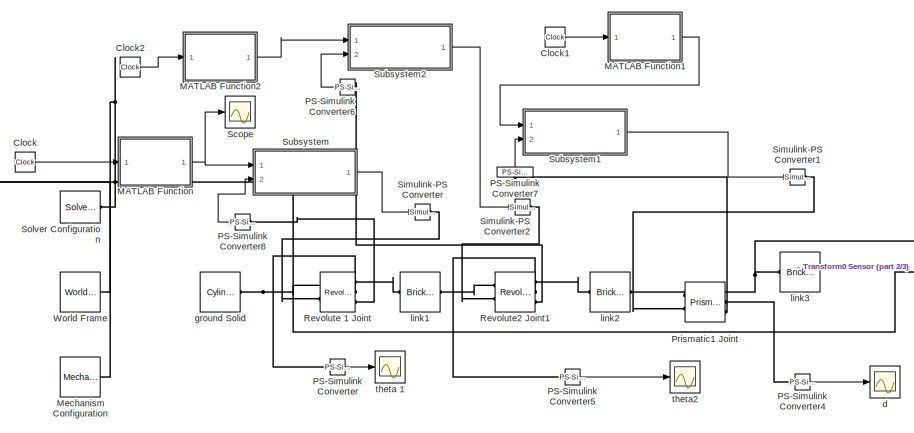
[diagram: root canvas - part 1/3, top left region]
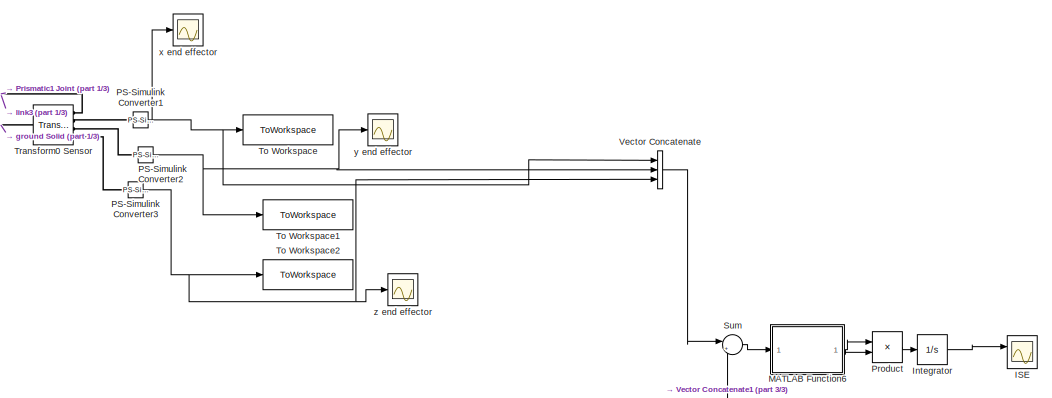
[diagram: root canvas - part 2/3, middle right region]
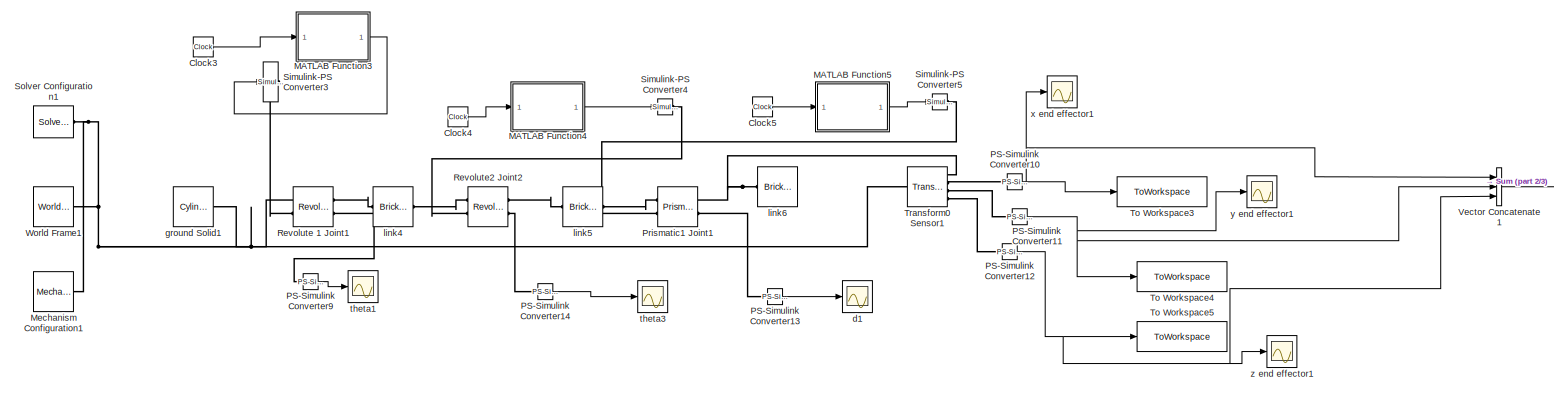
[diagram: root canvas - part 3/3, full width, bottom band]
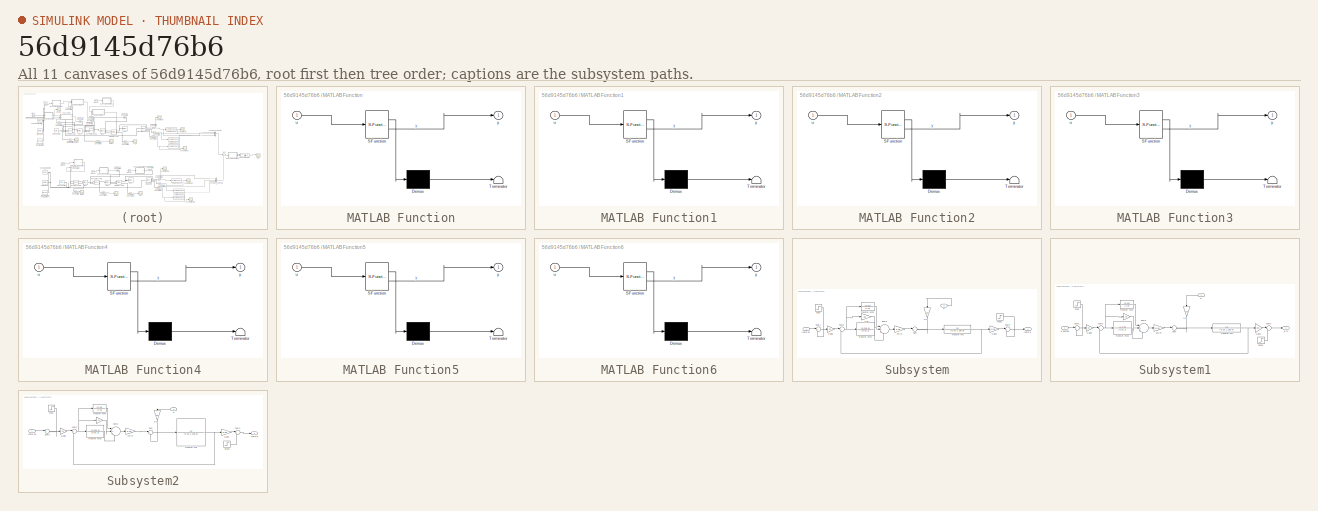
[diagram: thumbnail index - all 11 canvases of the model, root first then tree order]
MODEL slx_56d9145d76b6
KIND model
CONFIG AbsTol = auto
CONFIG EnableMultiTasking = off
CONFIG FixedStep = auto
CONFIG MaxStep = auto
CONFIG MinStep = auto
CONFIG RelTol = 1e-3
CONFIG SampleTimeConstraint = Unconstrained
CONFIG SolverName = VariableStepAuto
CONFIG StartTime = 0.0
CONFIG StopTime = 1
BLOCK [Clock] Clock
BLOCK [Clock] Clock1
BLOCK [Clock] Clock2
BLOCK [Clock] Clock3
BLOCK [Clock] Clock4
BLOCK [Clock] Clock5
BLOCK [Scope] ISE
  Floating = off
  NumInputPorts = 2
  Ports = [2]
  ScopeSpecificationString = Simulink.scopes.TimeScopeBlockCfg('CurrentConfiguration', extmgr.ConfigurationSet(extmgr.Configuration('Core','General UI',true),extmgr.Configuration('Core','Source UI',true),extmgr.Configuration('Sources','WiredSimulink',true,'DataLoggingVariableName','ScopeData7'),extmgr.Configuration('Visuals','Time Domain',true,'SerializedDisplays',{struct('MinYLimReal','-0.0087','MaxYLimReal','0.07832','YLabe...<+1379ch>
BLOCK [Integrator] Integrator
  Ports = [1, 1]
BLOCK [SubSystem] MATLAB Function
  ErrorFcn = Stateflow.Translate.translate
  PermitHierarchicalResolution = ExplicitOnly
  Ports = [1, 1]
  RequestExecContextInheritance = off
  SFBlockType = MATLAB Function
  TreatAsAtomicUnit = on
BLOCK [Demux] MATLAB Function/ Demux 
  Outputs = 1
  Ports = [1, 1]
BLOCK [S-Function] MATLAB Function/ SFunction 
  EnableBusSupport = on
  FunctionName = sf_sfun
  PortCounts = [1 2]
  Ports = [1, 2]
  SFcnIsStateOwnerBlock = off
  SFunctionDeploymentMode = off
  Tag = Stateflow S-Function 2
BLOCK [Terminator] MATLAB Function/ Terminator 
BLOCK [Inport] MATLAB Function/u
BLOCK [Outport] MATLAB Function/y
BLOCK [SubSystem] MATLAB Function1
  ErrorFcn = Stateflow.Translate.translate
  PermitHierarchicalResolution = ExplicitOnly
  Ports = [1, 1]
  RequestExecContextInheritance = off
  SFBlockType = MATLAB Function
  TreatAsAtomicUnit = on
BLOCK [Demux] MATLAB Function1/ Demux 
  Outputs = 1
  Ports = [1, 1]
BLOCK [S-Function] MATLAB Function1/ SFunction 
  EnableBusSupport = on
  FunctionName = sf_sfun
  PortCounts = [1 2]
  Ports = [1, 2]
  SFcnIsStateOwnerBlock = off
  SFunctionDeploymentMode = off
  Tag = Stateflow S-Function 1
BLOCK [Terminator] MATLAB Function1/ Terminator 
BLOCK [Inport] MATLAB Function1/u
BLOCK [Outport] MATLAB Function1/y
BLOCK [SubSystem] MATLAB Function2
  ErrorFcn = Stateflow.Translate.translate
  PermitHierarchicalResolution = ExplicitOnly
  Ports = [1, 1]
  RequestExecContextInheritance = off
  SFBlockType = MATLAB Function
  TreatAsAtomicUnit = on
BLOCK [Demux] MATLAB Function2/ Demux 
  Outputs = 1
  Ports = [1, 1]
BLOCK [S-Function] MATLAB Function2/ SFunction 
  EnableBusSupport = on
  FunctionName = sf_sfun
  PortCounts = [1 2]
  Ports = [1, 2]
  SFcnIsStateOwnerBlock = off
  SFunctionDeploymentMode = off
  Tag = Stateflow S-Function 3
BLOCK [Terminator] MATLAB Function2/ Terminator 
BLOCK [Inport] MATLAB Function2/u
BLOCK [Outport] MATLAB Function2/y
BLOCK [SubSystem] MATLAB Function3
  ErrorFcn = Stateflow.Translate.translate
  PermitHierarchicalResolution = ExplicitOnly
  Ports = [1, 1]
  RequestExecContextInheritance = off
  SFBlockType = MATLAB Function
  TreatAsAtomicUnit = on
BLOCK [Demux] MATLAB Function3/ Demux 
  Outputs = 1
  Ports = [1, 1]
BLOCK [S-Function] MATLAB Function3/ SFunction 
  EnableBusSupport = on
  FunctionName = sf_sfun
  PortCounts = [1 2]
  Ports = [1, 2]
  SFcnIsStateOwnerBlock = off
  SFunctionDeploymentMode = off
  Tag = Stateflow S-Function 4
BLOCK [Terminator] MATLAB Function3/ Terminator 
BLOCK [Inport] MATLAB Function3/u
BLOCK [Outport] MATLAB Function3/y
BLOCK [SubSystem] MATLAB Function4
  ErrorFcn = Stateflow.Translate.translate
  PermitHierarchicalResolution = ExplicitOnly
  Ports = [1, 1]
  RequestExecContextInheritance = off
  SFBlockType = MATLAB Function
  TreatAsAtomicUnit = on
BLOCK [Demux] MATLAB Function4/ Demux 
  Outputs = 1
  Ports = [1, 1]
BLOCK [S-Function] MATLAB Function4/ SFunction 
  EnableBusSupport = on
  FunctionName = sf_sfun
  PortCounts = [1 2]
  Ports = [1, 2]
  SFcnIsStateOwnerBlock = off
  SFunctionDeploymentMode = off
  Tag = Stateflow S-Function 5
BLOCK [Terminator] MATLAB Function4/ Terminator 
BLOCK [Inport] MATLAB Function4/u
BLOCK [Outport] MATLAB Function4/y
BLOCK [SubSystem] MATLAB Function5
  ErrorFcn = Stateflow.Translate.translate
  PermitHierarchicalResolution = ExplicitOnly
  Ports = [1, 1]
  RequestExecContextInheritance = off
  SFBlockType = MATLAB Function
  TreatAsAtomicUnit = on
BLOCK [Demux] MATLAB Function5/ Demux 
  Outputs = 1
  Ports = [1, 1]
BLOCK [S-Function] MATLAB Function5/ SFunction 
  EnableBusSupport = on
  FunctionName = sf_sfun
  PortCounts = [1 2]
  Ports = [1, 2]
  SFcnIsStateOwnerBlock = off
  SFunctionDeploymentMode = off
  Tag = Stateflow S-Function 6
BLOCK [Terminator] MATLAB Function5/ Terminator 
BLOCK [Inport] MATLAB Function5/u
BLOCK [Outport] MATLAB Function5/y
BLOCK [SubSystem] MATLAB Function6
  ErrorFcn = Stateflow.Translate.translate
  PermitHierarchicalResolution = ExplicitOnly
  Ports = [1, 1]
  RequestExecContextInheritance = off
  SFBlockType = MATLAB Function
  TreatAsAtomicUnit = on
BLOCK [Demux] MATLAB Function6/ Demux 
  Outputs = 1
  Ports = [1, 1]
BLOCK [S-Function] MATLAB Function6/ SFunction 
  EnableBusSupport = on
  FunctionName = sf_sfun
  PortCounts = [1 2]
  Ports = [1, 2]
  SFcnIsStateOwnerBlock = off
  SFunctionDeploymentMode = off
  Tag = Stateflow S-Function 7
BLOCK [Terminator] MATLAB Function6/ Terminator 
BLOCK [Inport] MATLAB Function6/u
BLOCK [Outport] MATLAB Function6/y
BLOCK [Reference] Mechanism Configuration  REF=sm_lib/Utilities/Mechanism
Configuration
  Ports = [0, 0, 0, 0, 0, 0, 1]
  SourceBlock = sm_lib/Utilities/Mechanism\nConfiguration
  SourceProductBaseCode = MS
  SourceType = Mechanism\nConfiguration
BLOCK [Reference] Mechanism Configuration1  REF=sm_lib/Utilities/Mechanism
Configuration
  Ports = [0, 0, 0, 0, 0, 0, 1]
  SourceBlock = sm_lib/Utilities/Mechanism\nConfiguration
  SourceProductBaseCode = MS
  SourceType = Mechanism\nConfiguration
BLOCK [Reference] PS-Simulink Converter  REF=nesl_utility/PS-Simulink
Converter
  Ports = [0, 1, 0, 0, 0, 1]
  SourceBlock = nesl_utility/PS-Simulink\nConverter
  SourceProductBaseCode = PW,SS
  SourceType = PS-Simulink\nConverter
BLOCK [Reference] PS-Simulink Converter1  REF=nesl_utility/PS-Simulink
Converter
  NameLocation = top
  Ports = [0, 1, 0, 0, 0, 1]
  SourceBlock = nesl_utility/PS-Simulink\nConverter
  SourceProductBaseCode = PW,SS
  SourceType = PS-Simulink\nConverter
BLOCK [Reference] PS-Simulink Converter10  REF=nesl_utility/PS-Simulink
Converter
  NameLocation = top
  Ports = [0, 1, 0, 0, 0, 1]
  SourceBlock = nesl_utility/PS-Simulink\nConverter
  SourceProductBaseCode = PW,SS
  SourceType = PS-Simulink\nConverter
BLOCK [Reference] PS-Simulink Converter11  REF=nesl_utility/PS-Simulink
Converter
  Ports = [0, 1, 0, 0, 0, 1]
  SourceBlock = nesl_utility/PS-Simulink\nConverter
  SourceProductBaseCode = PW,SS
  SourceType = PS-Simulink\nConverter
BLOCK [Reference] PS-Simulink Converter12  REF=nesl_utility/PS-Simulink
Converter
  Ports = [0, 1, 0, 0, 0, 1]
  SourceBlock = nesl_utility/PS-Simulink\nConverter
  SourceProductBaseCode = PW,SS
  SourceType = PS-Simulink\nConverter
BLOCK [Reference] PS-Simulink Converter13  REF=nesl_utility/PS-Simulink
Converter
  Ports = [0, 1, 0, 0, 0, 1]
  SourceBlock = nesl_utility/PS-Simulink\nConverter
  SourceProductBaseCode = PW,SS
  SourceType = PS-Simulink\nConverter
BLOCK [Reference] PS-Simulink Converter14  REF=nesl_utility/PS-Simulink
Converter
  Ports = [0, 1, 0, 0, 0, 1]
  SourceBlock = nesl_utility/PS-Simulink\nConverter
  SourceProductBaseCode = PW,SS
  SourceType = PS-Simulink\nConverter
BLOCK [Reference] PS-Simulink Converter2  REF=nesl_utility/PS-Simulink
Converter
  Ports = [0, 1, 0, 0, 0, 1]
  SourceBlock = nesl_utility/PS-Simulink\nConverter
  SourceProductBaseCode = PW,SS
  SourceType = PS-Simulink\nConverter
BLOCK [Reference] PS-Simulink Converter3  REF=nesl_utility/PS-Simulink
Converter
  Ports = [0, 1, 0, 0, 0, 1]
  SourceBlock = nesl_utility/PS-Simulink\nConverter
  SourceProductBaseCode = PW,SS
  SourceType = PS-Simulink\nConverter
BLOCK [Reference] PS-Simulink Converter4  REF=nesl_utility/PS-Simulink
Converter
  Ports = [0, 1, 0, 0, 0, 1]
  SourceBlock = nesl_utility/PS-Simulink\nConverter
  SourceProductBaseCode = PW,SS
  SourceType = PS-Simulink\nConverter
BLOCK [Reference] PS-Simulink Converter5  REF=nesl_utility/PS-Simulink
Converter
  Ports = [0, 1, 0, 0, 0, 1]
  SourceBlock = nesl_utility/PS-Simulink\nConverter
  SourceProductBaseCode = PW,SS
  SourceType = PS-Simulink\nConverter
BLOCK [Reference] PS-Simulink Converter6  REF=nesl_utility/PS-Simulink
Converter
  NameLocation = top
  Ports = [0, 1, 0, 0, 0, 1]
  SourceBlock = nesl_utility/PS-Simulink\nConverter
  SourceProductBaseCode = PW,SS
  SourceType = PS-Simulink\nConverter
BLOCK [Reference] PS-Simulink Converter7  REF=nesl_utility/PS-Simulink
Converter
  NameLocation = right
  Ports = [0, 1, 0, 0, 0, 1]
  SourceBlock = nesl_utility/PS-Simulink\nConverter
  SourceProductBaseCode = PW,SS
  SourceType = PS-Simulink\nConverter
BLOCK [Reference] PS-Simulink Converter8  REF=nesl_utility/PS-Simulink
Converter
  NameLocation = top
  Ports = [0, 1, 0, 0, 0, 1]
  SourceBlock = nesl_utility/PS-Simulink\nConverter
  SourceProductBaseCode = PW,SS
  SourceType = PS-Simulink\nConverter
BLOCK [Reference] PS-Simulink Converter9  REF=nesl_utility/PS-Simulink
Converter
  Ports = [0, 1, 0, 0, 0, 1]
  SourceBlock = nesl_utility/PS-Simulink\nConverter
  SourceProductBaseCode = PW,SS
  SourceType = PS-Simulink\nConverter
BLOCK [Reference] Prismatic1 Joint  REF=sm_lib/Joints/Prismatic
Joint
  Ports = [0, 0, 0, 0, 0, 2, 3]
  SourceBlock = sm_lib/Joints/Prismatic\nJoint
  SourceProductBaseCode = MS
  SourceType = Prismatic\nJoint
BLOCK [Reference] Prismatic1 Joint1  REF=sm_lib/Joints/Prismatic
Joint
  Ports = [0, 0, 0, 0, 0, 2, 2]
  SourceBlock = sm_lib/Joints/Prismatic\nJoint
  SourceProductBaseCode = MS
  SourceType = Prismatic\nJoint
BLOCK [Product] Product
  Ports = [2, 1]
BLOCK [Reference] Revolute 1 Joint  REF=sm_lib/Joints/Revolute Joint
  Ports = [0, 0, 0, 0, 0, 2, 3]
  SourceBlock = sm_lib/Joints/Revolute Joint
  SourceProductBaseCode = MS
  SourceType = Revolute Joint
BLOCK [Reference] Revolute 1 Joint1  REF=sm_lib/Joints/Revolute Joint
  Ports = [0, 0, 0, 0, 0, 2, 2]
  SourceBlock = sm_lib/Joints/Revolute Joint
  SourceProductBaseCode = MS
  SourceType = Revolute Joint
BLOCK [Reference] Revolute2 Joint1  REF=sm_lib/Joints/Revolute Joint
  Ports = [0, 0, 0, 0, 0, 2, 3]
  SourceBlock = sm_lib/Joints/Revolute Joint
  SourceProductBaseCode = MS
  SourceType = Revolute Joint
BLOCK [Reference] Revolute2 Joint2  REF=sm_lib/Joints/Revolute Joint
  Ports = [0, 0, 0, 0, 0, 2, 2]
  SourceBlock = sm_lib/Joints/Revolute Joint
  SourceProductBaseCode = MS
  SourceType = Revolute Joint
BLOCK [Scope] Scope
  Floating = off
  NumInputPorts = 1
  Ports = [1]
  ScopeSpecificationString = Simulink.scopes.TimeScopeBlockCfg('CurrentConfiguration', extmgr.ConfigurationSet(extmgr.Configuration('Core','General UI',true),extmgr.Configuration('Core','Source UI',true),extmgr.Configuration('Sources','WiredSimulink',true,'DataLoggingVariableName','ScopeData1'),extmgr.Configuration('Visuals','Time Domain',true,'SerializedDisplays',{struct('MinYLimReal','-0.75267','MaxYLimReal','1.53807','YLab...<+1374ch>
BLOCK [Reference] Simulink-PS Converter  REF=nesl_utility/Simulink-PS
Converter
  Ports = [1, 0, 0, 0, 0, 0, 1]
  SourceBlock = nesl_utility/Simulink-PS\nConverter
  SourceProductBaseCode = PW,SS
  SourceType = Simulink-PS\nConverter
BLOCK [Reference] Simulink-PS Converter1  REF=nesl_utility/Simulink-PS
Converter
  Ports = [1, 0, 0, 0, 0, 0, 1]
  SourceBlock = nesl_utility/Simulink-PS\nConverter
  SourceProductBaseCode = PW,SS
  SourceType = Simulink-PS\nConverter
BLOCK [Reference] Simulink-PS Converter2  REF=nesl_utility/Simulink-PS
Converter
  Ports = [1, 0, 0, 0, 0, 0, 1]
  SourceBlock = nesl_utility/Simulink-PS\nConverter
  SourceProductBaseCode = PW,SS
  SourceType = Simulink-PS\nConverter
BLOCK [Reference] Simulink-PS Converter3  REF=nesl_utility/Simulink-PS
Converter
  Ports = [1, 0, 0, 0, 0, 0, 1]
  SourceBlock = nesl_utility/Simulink-PS\nConverter
  SourceProductBaseCode = PW,SS
  SourceType = Simulink-PS\nConverter
BLOCK [Reference] Simulink-PS Converter4  REF=nesl_utility/Simulink-PS
Converter
  Ports = [1, 0, 0, 0, 0, 0, 1]
  SourceBlock = nesl_utility/Simulink-PS\nConverter
  SourceProductBaseCode = PW,SS
  SourceType = Simulink-PS\nConverter
BLOCK [Reference] Simulink-PS Converter5  REF=nesl_utility/Simulink-PS
Converter
  Ports = [1, 0, 0, 0, 0, 0, 1]
  SourceBlock = nesl_utility/Simulink-PS\nConverter
  SourceProductBaseCode = PW,SS
  SourceType = Simulink-PS\nConverter
BLOCK [Reference] Solver Configuration  REF=nesl_utility/Solver
Configuration
  Ports = [0, 0, 0, 0, 0, 0, 1]
  SourceBlock = nesl_utility/Solver\nConfiguration
  SourceProductBaseCode = PW,SS
  SourceType = Solver\nConfiguration
BLOCK [Reference] Solver Configuration1  REF=nesl_utility/Solver
Configuration
  Ports = [0, 0, 0, 0, 0, 0, 1]
  SourceBlock = nesl_utility/Solver\nConfiguration
  SourceProductBaseCode = PW,SS
  SourceType = Solver\nConfiguration
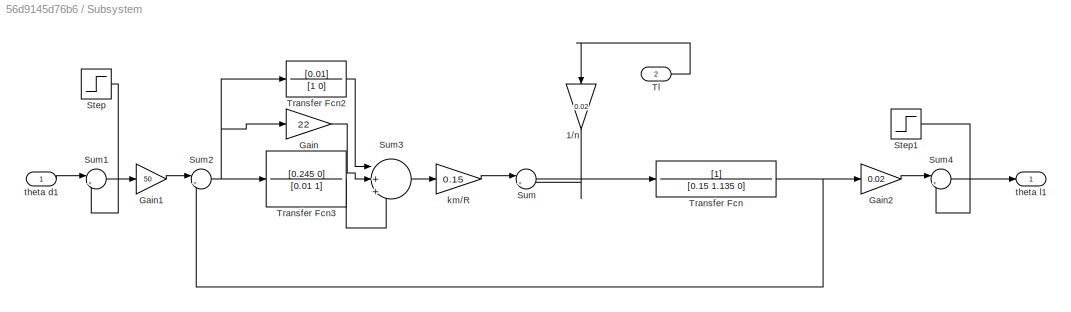
BLOCK [SubSystem] Subsystem
  Ports = [2, 1]
  RequestExecContextInheritance = off
BLOCK [Gain] Subsystem/1//n
  Gain = 0.02
  NameLocation = left
BLOCK [Gain] Subsystem/Gain
  Gain = 22
BLOCK [Gain] Subsystem/Gain1
  Gain = 50
BLOCK [Gain] Subsystem/Gain2
  Gain = 0.02
BLOCK [Step] Subsystem/Step
  After = -0.523
  SampleTime = 0
  Time = 0
BLOCK [Step] Subsystem/Step1
  After = -0.523
  SampleTime = 0
  Time = 0
BLOCK [Sum] Subsystem/Sum
  Inputs = |+-
  Ports = [2, 1]
BLOCK [Sum] Subsystem/Sum1
  Inputs = |+-
  Ports = [2, 1]
BLOCK [Sum] Subsystem/Sum2
  Inputs = |+-
  Ports = [2, 1]
BLOCK [Sum] Subsystem/Sum3
  Inputs = |+++
  Ports = [3, 1]
BLOCK [Sum] Subsystem/Sum4
  Inputs = |++
  Ports = [2, 1]
BLOCK [Inport] Subsystem/Tl
  Port = 2
BLOCK [TransferFcn] Subsystem/Transfer Fcn
  Denominator = [0.15 1.135 0]
BLOCK [TransferFcn] Subsystem/Transfer Fcn2
  Denominator = [1 0]
  Numerator = [0.01]
BLOCK [TransferFcn] Subsystem/Transfer Fcn3
  Denominator = [0.01 1]
  Numerator = [0.245 0]
BLOCK [Gain] Subsystem/km//R
  Gain = 0.15
BLOCK [Inport] Subsystem/theta d1
BLOCK [Outport] Subsystem/theta l1
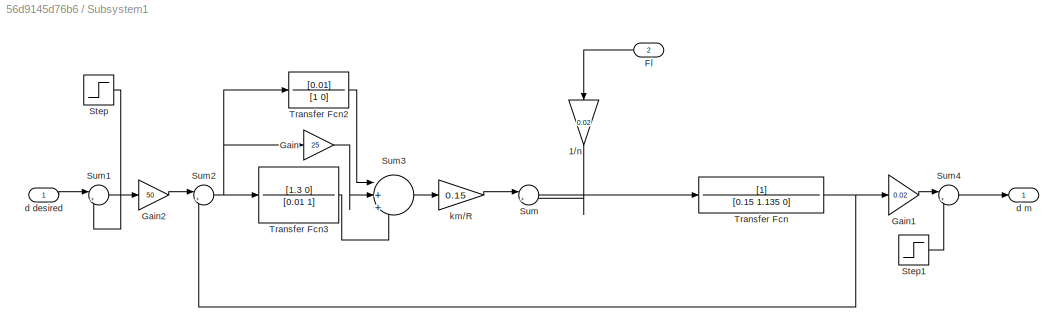
BLOCK [SubSystem] Subsystem1
  Ports = [2, 1]
  RequestExecContextInheritance = off
BLOCK [Gain] Subsystem1/1//n
  Gain = 0.02
  NameLocation = left
BLOCK [Inport] Subsystem1/Fl
  NameLocation = top
  Port = 2
BLOCK [Gain] Subsystem1/Gain
  Gain = 25
BLOCK [Gain] Subsystem1/Gain1
  Gain = 0.02
BLOCK [Gain] Subsystem1/Gain2
  Gain = 50
BLOCK [Step] Subsystem1/Step
  After = 0.05
  SampleTime = 0
  Time = 0
BLOCK [Step] Subsystem1/Step1
  After = 0.05
  SampleTime = 0
  Time = 0
BLOCK [Sum] Subsystem1/Sum
  Inputs = |+-
  Ports = [2, 1]
BLOCK [Sum] Subsystem1/Sum1
  Inputs = |+-
  Ports = [2, 1]
BLOCK [Sum] Subsystem1/Sum2
  Inputs = |+-
  Ports = [2, 1]
BLOCK [Sum] Subsystem1/Sum3
  Inputs = |+++
  Ports = [3, 1]
BLOCK [Sum] Subsystem1/Sum4
  Inputs = |++
  Ports = [2, 1]
BLOCK [TransferFcn] Subsystem1/Transfer Fcn
  Denominator = [0.15 1.135 0]
BLOCK [TransferFcn] Subsystem1/Transfer Fcn2
  Denominator = [1 0]
  Numerator = [0.01]
BLOCK [TransferFcn] Subsystem1/Transfer Fcn3
  Denominator = [0.01 1]
  Numerator = [1.3 0]
BLOCK [Inport] Subsystem1/d desired
BLOCK [Outport] Subsystem1/d m
BLOCK [Gain] Subsystem1/km//R
  Gain = 0.15
BLOCK [SubSystem] Subsystem2
  Ports = [2, 1]
  RequestExecContextInheritance = off
BLOCK [Gain] Subsystem2/1//n
  Gain = 0.02
  NameLocation = left
BLOCK [Gain] Subsystem2/Gain
  Gain = 22
BLOCK [Gain] Subsystem2/Gain1
  Gain = 50
BLOCK [Gain] Subsystem2/Gain2
  Gain = 0.02
BLOCK [Step] Subsystem2/Step
  After = -0.349
  SampleTime = 0
  Time = 0
BLOCK [Step] Subsystem2/Step1
  After = -0.349
  SampleTime = 0
  Time = 0
BLOCK [Sum] Subsystem2/Sum
  Inputs = |+-
  Ports = [2, 1]
BLOCK [Sum] Subsystem2/Sum1
  Inputs = |+-
  Ports = [2, 1]
BLOCK [Sum] Subsystem2/Sum2
  Inputs = |+-
  Ports = [2, 1]
BLOCK [Sum] Subsystem2/Sum3
  Inputs = |+++
  Ports = [3, 1]
BLOCK [Sum] Subsystem2/Sum4
  Inputs = |++
  Ports = [2, 1]
BLOCK [Inport] Subsystem2/Tl
  NameLocation = top
  Port = 2
BLOCK [TransferFcn] Subsystem2/Transfer Fcn
  Denominator = [0.15 1.135 0]
BLOCK [TransferFcn] Subsystem2/Transfer Fcn2
  Denominator = [1 0]
  Numerator = [0.01]
BLOCK [TransferFcn] Subsystem2/Transfer Fcn3
  Denominator = [0.01 1]
  Numerator = [0.245 0]
BLOCK [Gain] Subsystem2/km//R
  Gain = 0.15
BLOCK [Inport] Subsystem2/theta d2
BLOCK [Outport] Subsystem2/theta l2
BLOCK [Sum] Sum
  Inputs = |+-
  Ports = [2, 1]
BLOCK [ToWorkspace] To Workspace
  FixptAsFi = on
  MaxDataPoints = inf
  Ports = [1]
  SampleTime = -1
  SaveFormat = Timeseries
  VariableName = x
BLOCK [ToWorkspace] To Workspace1
  FixptAsFi = on
  MaxDataPoints = inf
  Ports = [1]
  SampleTime = -1
  SaveFormat = Timeseries
  VariableName = y
BLOCK [ToWorkspace] To Workspace2
  FixptAsFi = on
  MaxDataPoints = inf
  Ports = [1]
  SampleTime = -1
  SaveFormat = Timeseries
  VariableName = z
BLOCK [ToWorkspace] To Workspace3
  FixptAsFi = on
  MaxDataPoints = inf
  Ports = [1]
  SampleTime = -1
  SaveFormat = Timeseries
  VariableName = x1
BLOCK [ToWorkspace] To Workspace4
  FixptAsFi = on
  MaxDataPoints = inf
  Ports = [1]
  SampleTime = -1
  SaveFormat = Timeseries
  VariableName = y1
BLOCK [ToWorkspace] To Workspace5
  FixptAsFi = on
  MaxDataPoints = inf
  Ports = [1]
  SampleTime = -1
  SaveFormat = Timeseries
  VariableName = z1
BLOCK [Reference] Transform0 Sensor  REF=sm_lib/Frames and
Transforms/Transform
Sensor
  Ports = [0, 0, 0, 0, 0, 1, 4]
  SourceBlock = sm_lib/Frames and\nTransforms/Transform\nSensor
  SourceProductBaseCode = MS
  SourceType = Transform\nSensor
BLOCK [Reference] Transform0 Sensor1  REF=sm_lib/Frames and
Transforms/Transform
Sensor
  Ports = [0, 0, 0, 0, 0, 1, 4]
  SourceBlock = sm_lib/Frames and\nTransforms/Transform\nSensor
  SourceProductBaseCode = MS
  SourceType = Transform\nSensor
BLOCK [Concatenate] Vector Concatenate
  NumInputs = 3
  Ports = [3, 1]
BLOCK [Concatenate] Vector Concatenate1
  NumInputs = 3
  Ports = [3, 1]
BLOCK [Reference] World Frame  REF=sm_lib/Frames and
Transforms/World Frame
  Ports = [0, 0, 0, 0, 0, 0, 1]
  SourceBlock = sm_lib/Frames and\nTransforms/World Frame
  SourceProductBaseCode = MS
  SourceType = World Frame
BLOCK [Reference] World Frame1  REF=sm_lib/Frames and
Transforms/World Frame
  Ports = [0, 0, 0, 0, 0, 0, 1]
  SourceBlock = sm_lib/Frames and\nTransforms/World Frame
  SourceProductBaseCode = MS
  SourceType = World Frame
BLOCK [Scope] d
  Floating = off
  NumInputPorts = 1
  Ports = [1]
  ScopeSpecificationString = Simulink.scopes.TimeScopeBlockCfg('CurrentConfiguration', extmgr.ConfigurationSet(extmgr.Configuration('Core','General UI',true),extmgr.Configuration('Core','Source UI',true),extmgr.Configuration('Sources','WiredSimulink',true,'DataLoggingVariableName','ScopeData1'),extmgr.Configuration('Visuals','Time Domain',true,'SerializedDisplays',{struct('MinYLimReal','0.03977','MaxYLimReal','0.14204','YLabe...<+1405ch>
BLOCK [Scope] d1
  Floating = off
  NumInputPorts = 1
  Ports = [1]
  ScopeSpecificationString = Simulink.scopes.TimeScopeBlockCfg('CurrentConfiguration', extmgr.ConfigurationSet(extmgr.Configuration('Core','General UI',true),extmgr.Configuration('Core','Source UI',true),extmgr.Configuration('Sources','WiredSimulink',true,'DataLoggingVariableName','ScopeData1'),extmgr.Configuration('Visuals','Time Domain',true,'SerializedDisplays',{struct('MinYLimReal','0.03625','MaxYLimReal','0.17375','YLabe...<+1379ch>
BLOCK [Reference] ground Solid  REF=sm_lib/Body Elements/Cylindrical Solid
  NameLocation = top
  Ports = [0, 0, 0, 0, 0, 1]
  SourceBlock = sm_lib/Body Elements/Cylindrical Solid
  SourceProductBaseCode = MS
  SourceType = Cylindrical Solid
BLOCK [Reference] ground Solid1  REF=sm_lib/Body Elements/Cylindrical Solid
  NameLocation = top
  Ports = [0, 0, 0, 0, 0, 1]
  SourceBlock = sm_lib/Body Elements/Cylindrical Solid
  SourceProductBaseCode = MS
  SourceType = Cylindrical Solid
BLOCK [Reference] link1  REF=sm_lib/Body Elements/Brick Solid
  Ports = [0, 0, 0, 0, 0, 1, 1]
  SourceBlock = sm_lib/Body Elements/Brick Solid
  SourceProductBaseCode = MS
  SourceType = Brick Solid
BLOCK [Reference] link2  REF=sm_lib/Body Elements/Brick Solid
  Ports = [0, 0, 0, 0, 0, 1, 1]
  SourceBlock = sm_lib/Body Elements/Brick Solid
  SourceProductBaseCode = MS
  SourceType = Brick Solid
BLOCK [Reference] link3  REF=sm_lib/Body Elements/Brick Solid
  Ports = [0, 0, 0, 0, 0, 1]
  SourceBlock = sm_lib/Body Elements/Brick Solid
  SourceProductBaseCode = MS
  SourceType = Brick Solid
BLOCK [Reference] link4  REF=sm_lib/Body Elements/Brick Solid
  Ports = [0, 0, 0, 0, 0, 1, 1]
  SourceBlock = sm_lib/Body Elements/Brick Solid
  SourceProductBaseCode = MS
  SourceType = Brick Solid
BLOCK [Reference] link5  REF=sm_lib/Body Elements/Brick Solid
  Ports = [0, 0, 0, 0, 0, 1, 1]
  SourceBlock = sm_lib/Body Elements/Brick Solid
  SourceProductBaseCode = MS
  SourceType = Brick Solid
BLOCK [Reference] link6  REF=sm_lib/Body Elements/Brick Solid
  Ports = [0, 0, 0, 0, 0, 1]
  SourceBlock = sm_lib/Body Elements/Brick Solid
  SourceProductBaseCode = MS
  SourceType = Brick Solid
BLOCK [Scope] theta 1
  Floating = off
  NumInputPorts = 1
  Ports = [1]
  ScopeSpecificationString = Simulink.scopes.TimeScopeBlockCfg('CurrentConfiguration', extmgr.ConfigurationSet(extmgr.Configuration('Core','General UI',true),extmgr.Configuration('Core','Source UI',true),extmgr.Configuration('Sources','WiredSimulink',true,'DataLoggingVariableName','ScopeData1'),extmgr.Configuration('Visuals','Time Domain',true,'SerializedDisplays',{struct('MinYLimReal','-0.68101','MaxYLimReal','0.89904','YLab...<+1406ch>
BLOCK [Scope] theta1
  Floating = off
  NumInputPorts = 1
  Ports = [1]
  ScopeSpecificationString = Simulink.scopes.TimeScopeBlockCfg('CurrentConfiguration', extmgr.ConfigurationSet(extmgr.Configuration('Core','General UI',true),extmgr.Configuration('Core','Source UI',true),extmgr.Configuration('Sources','WiredSimulink',true,'DataLoggingVariableName','ScopeData2'),extmgr.Configuration('Visuals','Time Domain',true,'SerializedDisplays',{struct('MinYLimReal','-0.75267','MaxYLimReal','1.53804','YLab...<+1380ch>
BLOCK [Scope] theta2
  Floating = off
  NumInputPorts = 1
  Ports = [1]
  ScopeSpecificationString = Simulink.scopes.TimeScopeBlockCfg('CurrentConfiguration', extmgr.ConfigurationSet(extmgr.Configuration('Core','General UI',true),extmgr.Configuration('Core','Source UI',true),extmgr.Configuration('Sources','WiredSimulink',true,'DataLoggingVariableName','ScopeData2'),extmgr.Configuration('Visuals','Time Domain',true,'SerializedDisplays',{struct('MinYLimReal','-0.43932','MaxYLimReal','0.46389','YLab...<+1407ch>
BLOCK [Scope] theta3
  Floating = off
  NumInputPorts = 1
  Ports = [1]
  ScopeSpecificationString = Simulink.scopes.TimeScopeBlockCfg('CurrentConfiguration', extmgr.ConfigurationSet(extmgr.Configuration('Core','General UI',true),extmgr.Configuration('Core','Source UI',true),extmgr.Configuration('Sources','WiredSimulink',true,'DataLoggingVariableName','ScopeData3'),extmgr.Configuration('Visuals','Time Domain',true,'SerializedDisplays',{struct('MinYLimReal','-0.47996','MaxYLimReal','0.82901','YLab...<+1381ch>
BLOCK [Scope] x end effector
  Floating = off
  NumInputPorts = 1
  Ports = [1]
  ScopeSpecificationString = Simulink.scopes.TimeScopeBlockCfg('CurrentConfiguration', extmgr.ConfigurationSet(extmgr.Configuration('Core','General UI',true),extmgr.Configuration('Core','Source UI',true),extmgr.Configuration('Sources','WiredSimulink',true,'DataLoggingVariableName','ScopeData4'),extmgr.Configuration('Visuals','Time Domain',true,'SerializedDisplays',{struct('MinYLimReal','0.27152','MaxYLimReal','0.40563','YLabe...<+1438ch>
BLOCK [Scope] x end effector1
  Floating = off
  NumInputPorts = 1
  Ports = [1]
  ScopeSpecificationString = Simulink.scopes.TimeScopeBlockCfg('CurrentConfiguration', extmgr.ConfigurationSet(extmgr.Configuration('Core','General UI',true),extmgr.Configuration('Core','Source UI',true),extmgr.Configuration('Sources','WiredSimulink',true,'DataLoggingVariableName','ScopeData4'),extmgr.Configuration('Visuals','Time Domain',true,'SerializedDisplays',{struct('MinYLimReal','0.05438','MaxYLimReal','0.42267','YLabe...<+1412ch>
BLOCK [Scope] y end effector
  Floating = off
  NumInputPorts = 1
  Ports = [1]
  ScopeSpecificationString = Simulink.scopes.TimeScopeBlockCfg('CurrentConfiguration', extmgr.ConfigurationSet(extmgr.Configuration('Core','General UI',true),extmgr.Configuration('Core','Source UI',true),extmgr.Configuration('Sources','WiredSimulink',true,'DataLoggingVariableName','ScopeData5'),extmgr.Configuration('Visuals','Time Domain',true,'SerializedDisplays',{struct('MinYLimReal','-0.21874','MaxYLimReal','0.32585','YLab...<+1407ch>
BLOCK [Scope] y end effector1
  Floating = off
  NumInputPorts = 1
  Ports = [1]
  ScopeSpecificationString = Simulink.scopes.TimeScopeBlockCfg('CurrentConfiguration', extmgr.ConfigurationSet(extmgr.Configuration('Core','General UI',true),extmgr.Configuration('Core','Source UI',true),extmgr.Configuration('Sources','WiredSimulink',true,'DataLoggingVariableName','ScopeData5'),extmgr.Configuration('Visuals','Time Domain',true,'SerializedDisplays',{struct('MinYLimReal','-0.22763','MaxYLimReal','0.40424','YLab...<+1407ch>
BLOCK [Scope] z end effector
  Floating = off
  NumInputPorts = 1
  Ports = [1]
  ScopeSpecificationString = Simulink.scopes.TimeScopeBlockCfg('CurrentConfiguration', extmgr.ConfigurationSet(extmgr.Configuration('Core','General UI',true),extmgr.Configuration('Core','Source UI',true),extmgr.Configuration('Sources','WiredSimulink',true),extmgr.Configuration('Visuals','Time Domain',true,'SerializedDisplays',{struct('MinYLimReal','0.15566','MaxYLimReal','0.50225','YLabelReal','','MinYLimMag','0.15566','MaxYL...<+1340ch>
BLOCK [Scope] z end effector1
  Floating = off
  NumInputPorts = 1
  Ports = [1]
  ScopeSpecificationString = Simulink.scopes.TimeScopeBlockCfg('CurrentConfiguration', extmgr.ConfigurationSet(extmgr.Configuration('Core','General UI',true),extmgr.Configuration('Core','Source UI',true),extmgr.Configuration('Sources','WiredSimulink',true,'DataLoggingVariableName','ScopeData6'),extmgr.Configuration('Visuals','Time Domain',true,'SerializedDisplays',{struct('MinYLimReal','0.13837','MaxYLimReal','0.6576','YLabel...<+1375ch>
LINE Clock1:1 -> MATLAB Function1:1
LINE Clock2:1 -> MATLAB Function2:1
LINE Clock3:1 -> MATLAB Function3:1
LINE Clock4:1 -> MATLAB Function4:1
LINE Clock5:1 -> MATLAB Function5:1
LINE Clock:1 -> MATLAB Function:1
LINE Integrator:1 -> ISE:1
LINE MATLAB Function1:1 -> Subsystem1:1
LINE MATLAB Function2:1 -> Subsystem2:1
LINE MATLAB Function3:1 -> Simulink-PS Converter3:1
LINE MATLAB Function4:1 -> Simulink-PS Converter4:1
LINE MATLAB Function5:1 -> Simulink-PS Converter5:1
NET MATLAB Function6:1 -> Product:1, Product:2
NET MATLAB Function:1 -> Scope:1, Subsystem:1
NET PS-Simulink Converter10:1 -> To Workspace3:1, Vector Concatenate1:1, x end effector1:1
NET PS-Simulink Converter11:1 -> To Workspace4:1, Vector Concatenate1:2, y end effector1:1
NET PS-Simulink Converter12:1 -> To Workspace5:1, Vector Concatenate1:3, z end effector1:1
LINE PS-Simulink Converter13:1 -> d1:1
LINE PS-Simulink Converter14:1 -> theta3:1
NET PS-Simulink Converter1:1 -> To Workspace:1, Vector Concatenate:1, x end effector:1
NET PS-Simulink Converter2:1 -> To Workspace1:1, Vector Concatenate:2, y end effector:1
NET PS-Simulink Converter3:1 -> To Workspace2:1, Vector Concatenate:3, z end effector:1
LINE PS-Simulink Converter4:1 -> d:1
LINE PS-Simulink Converter5:1 -> theta2:1
LINE PS-Simulink Converter6:1 -> Subsystem2:2
LINE PS-Simulink Converter7:1 -> Subsystem1:2
LINE PS-Simulink Converter8:1 -> Subsystem:2
LINE PS-Simulink Converter9:1 -> theta1:1
LINE PS-Simulink Converter:1 -> theta 1:1
LINE Product:1 -> Integrator:1
LINE Subsystem/1//n:1 -> Subsystem/Sum:2
LINE Subsystem/Gain1:1 -> Subsystem/Sum2:1
LINE Subsystem/Gain2:1 -> Subsystem/Sum4:1
LINE Subsystem/Gain:1 -> Subsystem/Sum3:2
LINE Subsystem/Step1:1 -> Subsystem/Sum4:2
LINE Subsystem/Step:1 -> Subsystem/Sum1:2
LINE Subsystem/Sum1:1 -> Subsystem/Gain1:1
NET Subsystem/Sum2:1 -> Subsystem/Gain:1, Subsystem/Transfer Fcn2:1, Subsystem/Transfer Fcn3:1
LINE Subsystem/Sum3:1 -> Subsystem/km//R:1
LINE Subsystem/Sum4:1 -> Subsystem/theta l1:1
LINE Subsystem/Sum:1 -> Subsystem/Transfer Fcn:1
LINE Subsystem/Tl:1 -> Subsystem/1//n:1
LINE Subsystem/Transfer Fcn2:1 -> Subsystem/Sum3:1
LINE Subsystem/Transfer Fcn3:1 -> Subsystem/Sum3:3
NET Subsystem/Transfer Fcn:1 -> Subsystem/Gain2:1, Subsystem/Sum2:2
LINE Subsystem/km//R:1 -> Subsystem/Sum:1
LINE Subsystem/theta d1:1 -> Subsystem/Sum1:1
LINE Subsystem1/1//n:1 -> Subsystem1/Sum:2
LINE Subsystem1/Fl:1 -> Subsystem1/1//n:1
LINE Subsystem1/Gain1:1 -> Subsystem1/Sum4:1
LINE Subsystem1/Gain2:1 -> Subsystem1/Sum2:1
LINE Subsystem1/Gain:1 -> Subsystem1/Sum3:2
LINE Subsystem1/Step1:1 -> Subsystem1/Sum4:2
LINE Subsystem1/Step:1 -> Subsystem1/Sum1:2
LINE Subsystem1/Sum1:1 -> Subsystem1/Gain2:1
NET Subsystem1/Sum2:1 -> Subsystem1/Gain:1, Subsystem1/Transfer Fcn2:1, Subsystem1/Transfer Fcn3:1
LINE Subsystem1/Sum3:1 -> Subsystem1/km//R:1
LINE Subsystem1/Sum4:1 -> Subsystem1/d m:1
LINE Subsystem1/Sum:1 -> Subsystem1/Transfer Fcn:1
LINE Subsystem1/Transfer Fcn2:1 -> Subsystem1/Sum3:1
LINE Subsystem1/Transfer Fcn3:1 -> Subsystem1/Sum3:3
NET Subsystem1/Transfer Fcn:1 -> Subsystem1/Gain1:1, Subsystem1/Sum2:2
LINE Subsystem1/d desired:1 -> Subsystem1/Sum1:1
LINE Subsystem1/km//R:1 -> Subsystem1/Sum:1
LINE Subsystem1:1 -> Simulink-PS Converter1:1
LINE Subsystem2/1//n:1 -> Subsystem2/Sum:2
LINE Subsystem2/Gain1:1 -> Subsystem2/Sum2:1
LINE Subsystem2/Gain2:1 -> Subsystem2/Sum4:1
LINE Subsystem2/Gain:1 -> Subsystem2/Sum3:2
LINE Subsystem2/Step1:1 -> Subsystem2/Sum4:2
LINE Subsystem2/Step:1 -> Subsystem2/Sum1:2
LINE Subsystem2/Sum1:1 -> Subsystem2/Gain1:1
NET Subsystem2/Sum2:1 -> Subsystem2/Gain:1, Subsystem2/Transfer Fcn2:1, Subsystem2/Transfer Fcn3:1
LINE Subsystem2/Sum3:1 -> Subsystem2/km//R:1
LINE Subsystem2/Sum4:1 -> Subsystem2/theta l2:1
LINE Subsystem2/Sum:1 -> Subsystem2/Transfer Fcn:1
LINE Subsystem2/Tl:1 -> Subsystem2/1//n:1
LINE Subsystem2/Transfer Fcn2:1 -> Subsystem2/Sum3:1
LINE Subsystem2/Transfer Fcn3:1 -> Subsystem2/Sum3:3
NET Subsystem2/Transfer Fcn:1 -> Subsystem2/Gain2:1, Subsystem2/Sum2:2
LINE Subsystem2/km//R:1 -> Subsystem2/Sum:1
LINE Subsystem2/theta d2:1 -> Subsystem2/Sum1:1
LINE Subsystem2:1 -> Simulink-PS Converter2:1
LINE Subsystem:1 -> Simulink-PS Converter:1
LINE Sum:1 -> MATLAB Function6:1
LINE Vector Concatenate1:1 -> Sum:2
LINE Vector Concatenate:1 -> Sum:1
PNET net1: Mechanism Configuration1:RConn1 -- Revolute 1 Joint1:LConn1 -- Solver Configuration1:RConn1 -- Transform0 Sensor1:LConn1 -- World Frame1:RConn1 -- ground Solid1:LConn1
PNET net2: Mechanism Configuration:RConn1 -- Revolute 1 Joint:LConn1 -- Solver Configuration:RConn1 -- Transform0 Sensor:LConn1 -- World Frame:RConn1 -- ground Solid:LConn1
PLINE PS-Simulink Converter10:LConn1 -- Transform0 Sensor1:RConn2
PLINE PS-Simulink Converter11:LConn1 -- Transform0 Sensor1:RConn3
PLINE PS-Simulink Converter12:LConn1 -- Transform0 Sensor1:RConn4
PLINE PS-Simulink Converter13:LConn1 -- Prismatic1 Joint1:RConn2
PLINE PS-Simulink Converter14:LConn1 -- Revolute2 Joint2:RConn2
PLINE PS-Simulink Converter1:LConn1 -- Transform0 Sensor:RConn2
PLINE PS-Simulink Converter2:LConn1 -- Transform0 Sensor:RConn3
PLINE PS-Simulink Converter3:LConn1 -- Transform0 Sensor:RConn4
PLINE PS-Simulink Converter4:LConn1 -- Prismatic1 Joint:RConn2
PLINE PS-Simulink Converter5:LConn1 -- Revolute2 Joint1:RConn2
PLINE PS-Simulink Converter6:LConn1 -- Revolute2 Joint1:RConn3
PLINE PS-Simulink Converter7:LConn1 -- Prismatic1 Joint:RConn3
PLINE PS-Simulink Converter8:LConn1 -- Revolute 1 Joint:RConn3
PLINE PS-Simulink Converter9:LConn1 -- Revolute 1 Joint1:RConn2
PLINE PS-Simulink Converter:LConn1 -- Revolute 1 Joint:RConn2
PLINE Prismatic1 Joint1:LConn1 -- link5:RConn1
PLINE Prismatic1 Joint1:LConn2 -- Simulink-PS Converter5:RConn1
PNET net3: Prismatic1 Joint1:RConn1 -- Transform0 Sensor1:RConn1 -- link6:LConn1
PLINE Prismatic1 Joint:LConn1 -- link2:RConn1
PLINE Prismatic1 Joint:LConn2 -- Simulink-PS Converter1:RConn1
PNET net4: Prismatic1 Joint:RConn1 -- Transform0 Sensor:RConn1 -- link3:LConn1
PLINE Revolute 1 Joint1:LConn2 -- Simulink-PS Converter3:RConn1
PLINE Revolute 1 Joint1:RConn1 -- link4:LConn1
PLINE Revolute 1 Joint:LConn2 -- Simulink-PS Converter:RConn1
PLINE Revolute 1 Joint:RConn1 -- link1:LConn1
PLINE Revolute2 Joint1:LConn1 -- link1:RConn1
PLINE Revolute2 Joint1:LConn2 -- Simulink-PS Converter2:RConn1
PLINE Revolute2 Joint1:RConn1 -- link2:LConn1
PLINE Revolute2 Joint2:LConn1 -- link4:RConn1
PLINE Revolute2 Joint2:LConn2 -- Simulink-PS Converter4:RConn1
PLINE Revolute2 Joint2:RConn1 -- link5:LConn1
note: NET lines group one-source signal fan-out (src -> all destinations, sorted); 1:1 wires keep LINE; PNET lines group multi-terminal physical nets as a canonical sorted terminal list (undirected conserving connections); 2-terminal nets keep the pairwise PLINE form
CHART MATLAB Function states=1 transitions=1
  STATE_LABEL 'eML_blk_kernel()'
  STATE_LABEL 'SCRIPT:\nfunction y = fcn(u)\n\ny = (-30+315*u^2-210*u^3)*3.1416/180;\n'
CHART MATLAB Function2 states=1 transitions=1
  STATE_LABEL 'eML_blk_kernel()'
  STATE_LABEL 'SCRIPT:\nfunction y = fcn(u)\n\ny = (-20+180*u^2-120*u^3)*3.1416/180;\n'
CHART MATLAB Function3 states=1 transitions=1
  STATE_LABEL 'eML_blk_kernel()'
  STATE_LABEL 'SCRIPT:\nfunction y = fcn(u)\n\ny = (-30+315*u^2-210*u^3)*3.1416/180;\n'
CHART MATLAB Function4 states=1 transitions=1
  STATE_LABEL 'eML_blk_kernel()'
  STATE_LABEL 'SCRIPT:\nfunction y = fcn(u)\n\ny = (-20+180*u^2-120*u^3)*3.1416/180;\n'
CHART MATLAB Function5 states=1 transitions=1
  STATE_LABEL 'eML_blk_kernel()'
  STATE_LABEL 'SCRIPT:\nfunction y = fcn(u)\n\ny =(50+330*u^2-220*u^3)*10^(-3);\n'
CHART MATLAB Function6 states=1 transitions=1
  STATE_LABEL 'eML_blk_kernel()'
  STATE_LABEL 'SCRIPT:\nfunction y = fcn(u)\n\ny = norm(u);\n'
CHART MATLAB Function1 states=1 transitions=1
  STATE_LABEL 'eML_blk_kernel()'
  STATE_LABEL 'SCRIPT:\nfunction y = fcn(u)\n\ny =(50+330*u^2-220*u^3)*10^(-3);\n'
CHART  states=0 transitions=0
CHART  states=0 transitions=0
CHART  states=0 transitions=0
CHART  states=0 transitions=0
CHART  states=0 transitions=0
CHART  states=0 transitions=0
CHART  states=0 transitions=0
